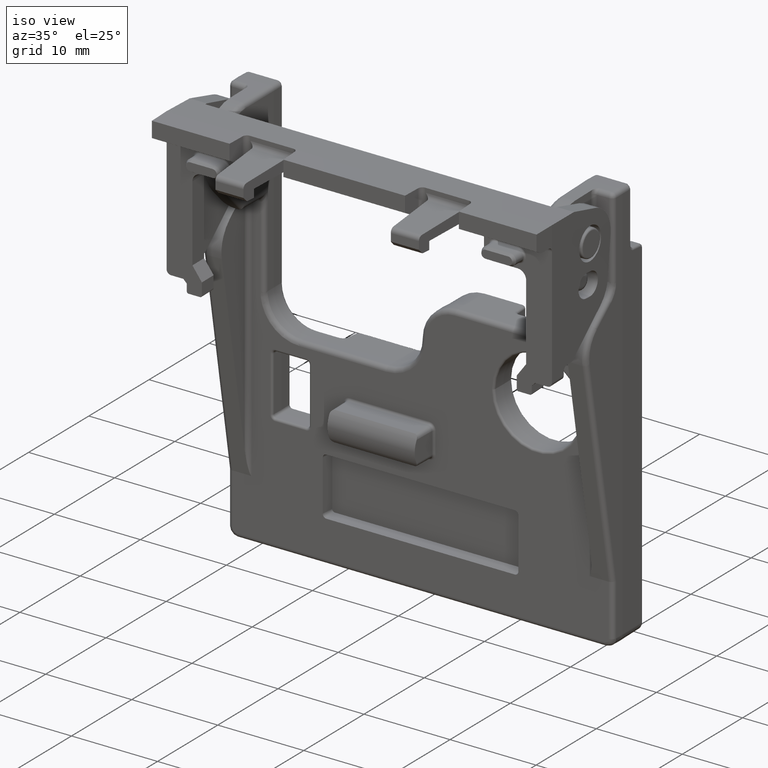
[diagram: clean part render]
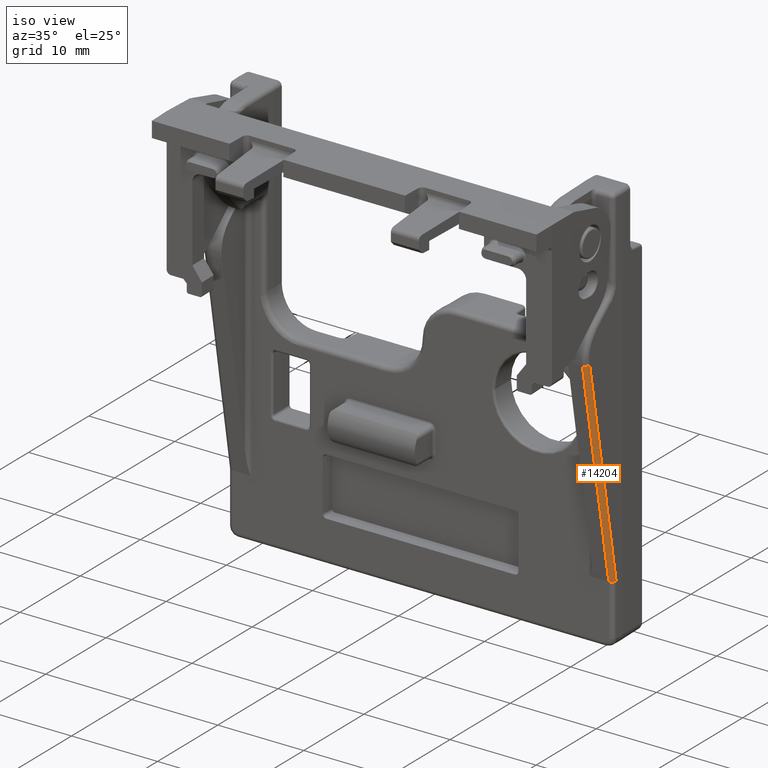
[diagram: same view with one face highlighted and labeled with its STEP entity id]
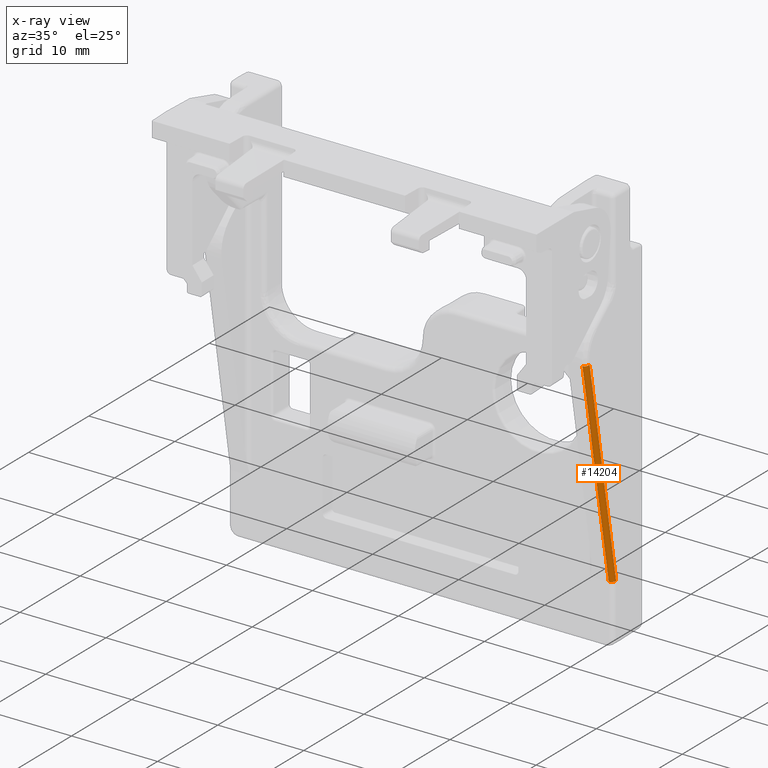
[diagram: x-ray of the same camera — body ghosted, the highlighted face saturated]
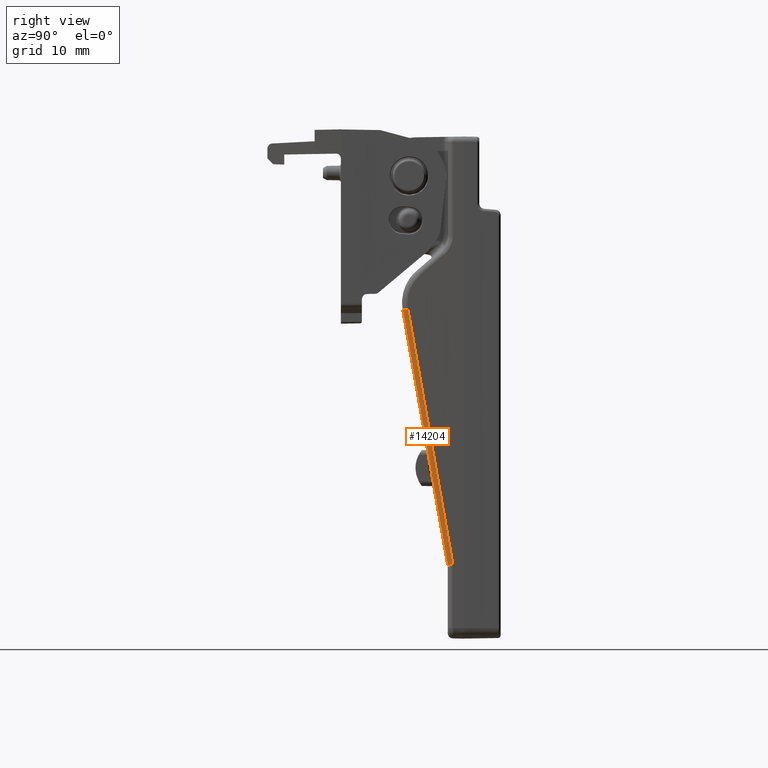
[diagram: same view with one face highlighted and labeled with its STEP entity id]
A machine part, iso view. The second image highlights one B-rep face of the part: STEP entity #14204.
The next image is the same camera in x-ray: the body ghosted, the highlighted face saturated — about 0% of this face is hidden behind the body in this view.
A second angle (right view) of the same face is appended — the face is thin or edge-on in the first view.
In plain terms, the highlighted cylindrical surface (edge-blend (fillet) strip) has radius 0.5 mm, axis along (0.003, 0.1736, -0.9848).
Its self-contained STEP definition (entity closure, byte-faithful):
#6807=CARTESIAN_POINT('',(2.188240247564E1,0.E0,-1.026E1));
#6808=CARTESIAN_POINT('',(2.194727647861E1,0.E0,-1.026E1));
#6809=CARTESIAN_POINT('',(2.207701292322E1,2.556840916035E-2,
-1.025741986949E1));
#6810=CARTESIAN_POINT('',(2.224222780531E1,1.346791262522E-1,
-1.024768001899E1));
#6811=CARTESIAN_POINT('',(2.235368323397E1,2.979968978187E-1,
-1.023320547104E1));
#6812=CARTESIAN_POINT('',(2.238126531434E1,4.266905771831E-1,
-1.022190767625E1));
#6813=CARTESIAN_POINT('',(2.238239261863E1,4.912737967814E-1,
-1.021625566824E1));
#6828=DIRECTION('',(3.033715911775E-3,1.736473750554E-1,-9.848032218185E-1));
#6829=VECTOR('',#6828,2.464839792685E1);
#6830=CARTESIAN_POINT('',(2.180762623864E1,-4.280129599318E0,1.401382169103E1));
#6831=LINE('',#6830,#6829);
#6832=CARTESIAN_POINT('',(2.180762623864E1,-3.787725809823E0,1.410064576452E1));
#6833=DIRECTION('',(3.031026292545E-3,1.736473800017E-1,-9.848032292281E-1));
#6834=DIRECTION('',(9.998476951564E-1,-1.745240643728E-2,0.E0));
#6835=AXIS2_PLACEMENT_3D('',#6832,#6833,#6834);
#6837=DIRECTION('',(3.031026292547E-3,1.736473800017E-1,-9.848032292281E-1));
#6838=VECTOR('',#6837,2.469214225852E1);
#6839=CARTESIAN_POINT('',(2.230755008622E1,-3.796452013042E0,1.410064576452E1));
#6840=LINE('',#6839,#6838);
#6855=CARTESIAN_POINT('',(2.230755008622E1,-3.796452013042E0,1.410064576452E1));
#6871=CARTESIAN_POINT('',(2.180762623864E1,-4.280129599318E0,1.401382169103E1));
#11130=VERTEX_POINT('',#6855);
#11131=VERTEX_POINT('',#6871);
#11132=CARTESIAN_POINT('',(2.188240247564E1,0.E0,-1.026E1));
#11133=VERTEX_POINT('',#11132);
#11134=CARTESIAN_POINT('',(2.238239261863E1,4.912737967814E-1,
-1.021625566824E1));
#11135=VERTEX_POINT('',#11134);
#14191=CARTESIAN_POINT('',(2.179628312269E1,-4.437572487557E0,
1.778610941349E1));
#14192=DIRECTION('',(3.031026292545E-3,1.736473800017E-1,-9.848032292281E-1));
#14193=DIRECTION('',(9.998476951564E-1,-1.745240643728E-2,0.E0));
#14194=AXIS2_PLACEMENT_3D('',#14191,#14192,#14193);
#14195=CYLINDRICAL_SURFACE('',#14194,5.E-1);
#14196=ORIENTED_EDGE('',*,*,#12599,.F.);
#14198=ORIENTED_EDGE('',*,*,#14197,.F.);
#14200=ORIENTED_EDGE('',*,*,#14199,.T.);
#14201=ORIENTED_EDGE('',*,*,#14182,.F.);
#14202=EDGE_LOOP('',(#14196,#14198,#14200,#14201));
#14203=FACE_OUTER_BOUND('',#14202,.F.);
#14204=ADVANCED_FACE('',(#14203),#14195,.T.);
#6814=B_SPLINE_CURVE_WITH_KNOTS('',3,(#6807,#6808,#6809,#6810,#6811,#6812,
#6813),.UNSPECIFIED.,.F.,.F.,(4,1,1,1,4),(0.E0,2.5E-1,5.E-1,7.5E-1,1.E0),
.UNSPECIFIED.);
#6836=CIRCLE('',#6835,5.E-1);
#12599=EDGE_CURVE('',#11131,#11133,#6831,.T.);
#14182=EDGE_CURVE('',#11133,#11135,#6814,.T.);
#14197=EDGE_CURVE('',#11130,#11131,#6836,.T.);
#14199=EDGE_CURVE('',#11130,#11135,#6840,.T.);